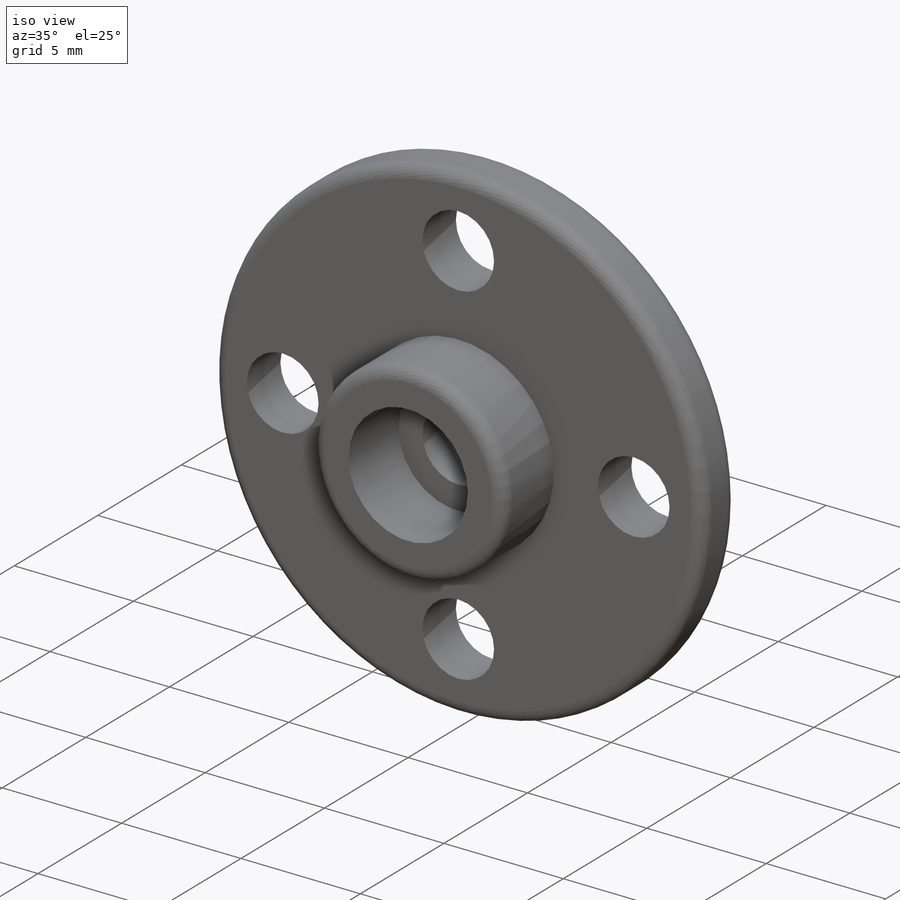
[diagram: iso view]
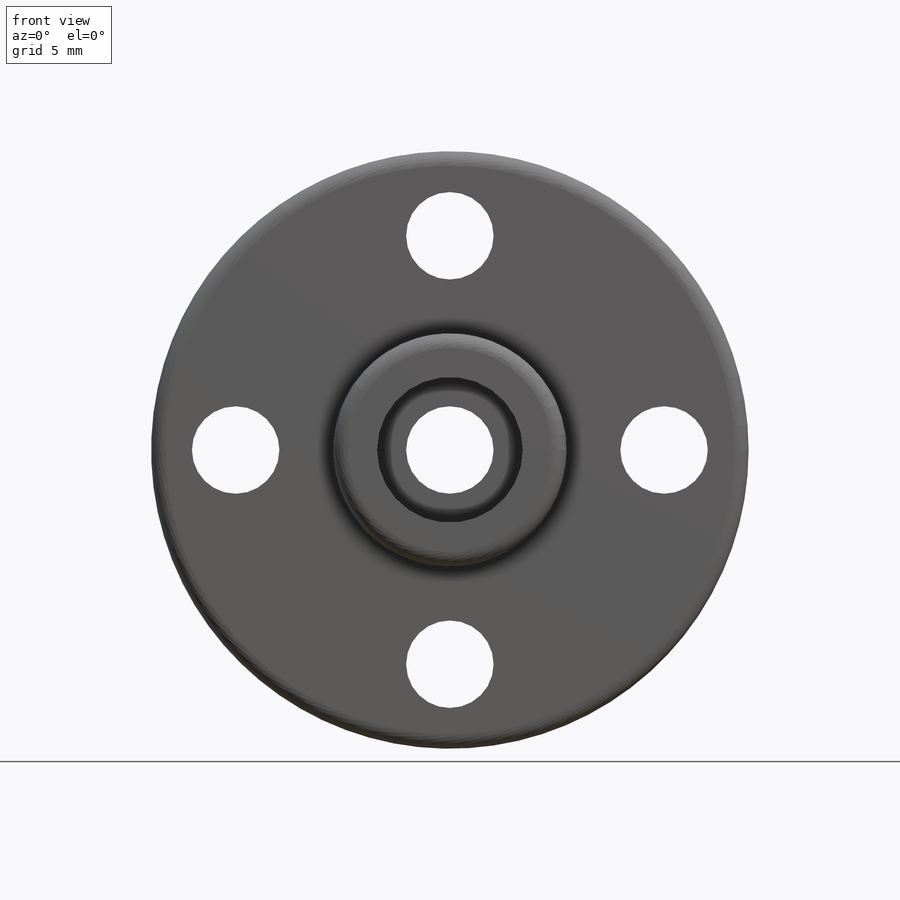
[diagram: front view]
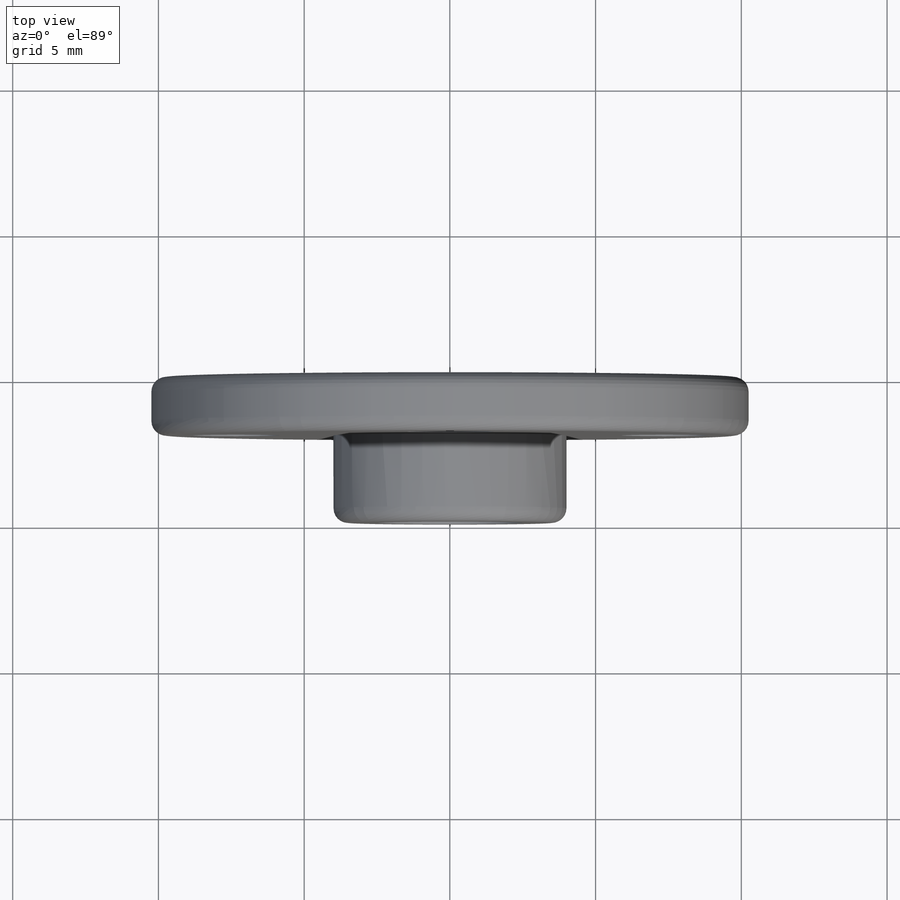
[diagram: top view]
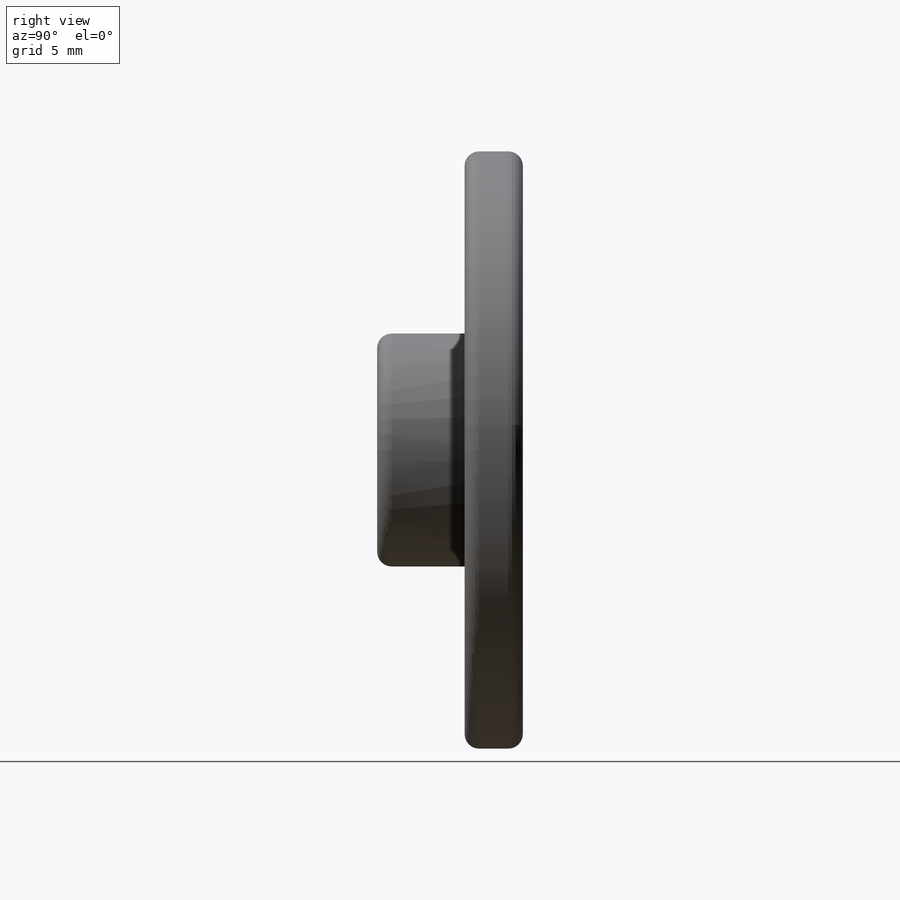
[diagram: right view]
SOLIDWORKS PART (.sldprt)
format: sldprt  version: not decoded by parser v0  size: 237,056 bytes
history: native  units: mm
features: plane x3, sketch x3, fillet x3, extrude x2, material x1, cut_extrude x1 (+10 scaffold rows collapsed)
feature tree (23):
  scaffold x10  (default folders/planes/origin — collapsed)
  material  "材质 <未指定>"
  plane  "前视基准面"
  plane  "上视基准面"
  plane  "右视基准面"
  sketch  "草图1"  dims[c1.D1=20.5mm c1.D2=3.0mm c1.D3=3.0mm c1.D4=3.0mm c2.D2=3.0mm c2.D3=3.0mm c2.D5=14.7mm c3.D5=90.0deg c3.D4=4.0]
  extrude  "凸台-拉伸1"  Depth=2mm
  sketch  "草图2"  dims[D1=8.0mm]
  extrude  "凸台-拉伸2"  Depth=3mm
  sketch  "草图3"  dims[D1=5.0mm]
  cut_extrude  "切除-拉伸1"  Depth=3mm
  fillet  "圆角1"  Radius=0.5mm
  fillet  "圆角2"  Radius=0.5mm
  fillet  "圆角3"  Radius=0.5mm
decode coverage: 9 of 9 modeling features carry decoded parameters
note: suppression state not decoded; provenance and decode notes live in map.json
